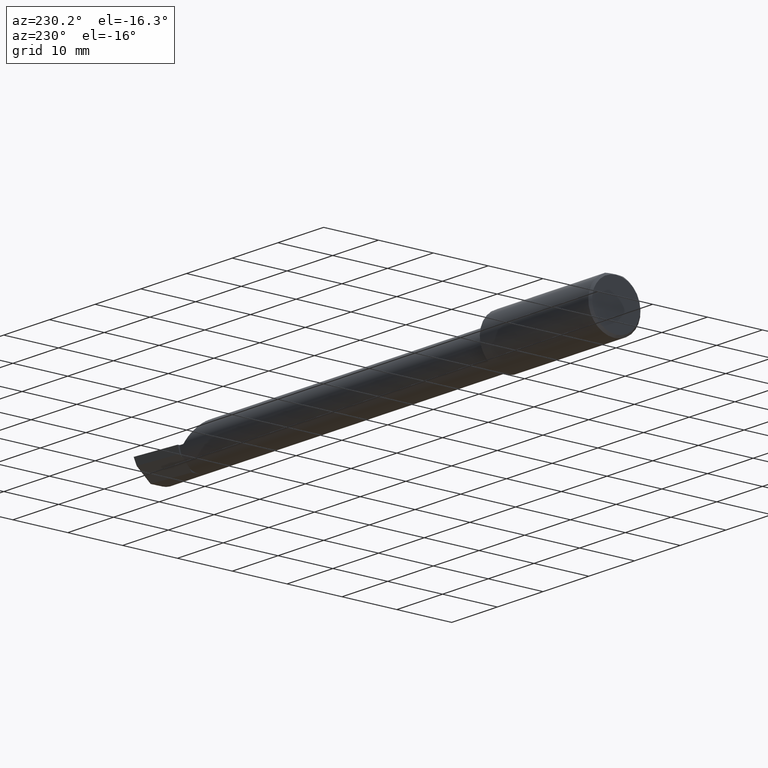
[diagram: clean part render]
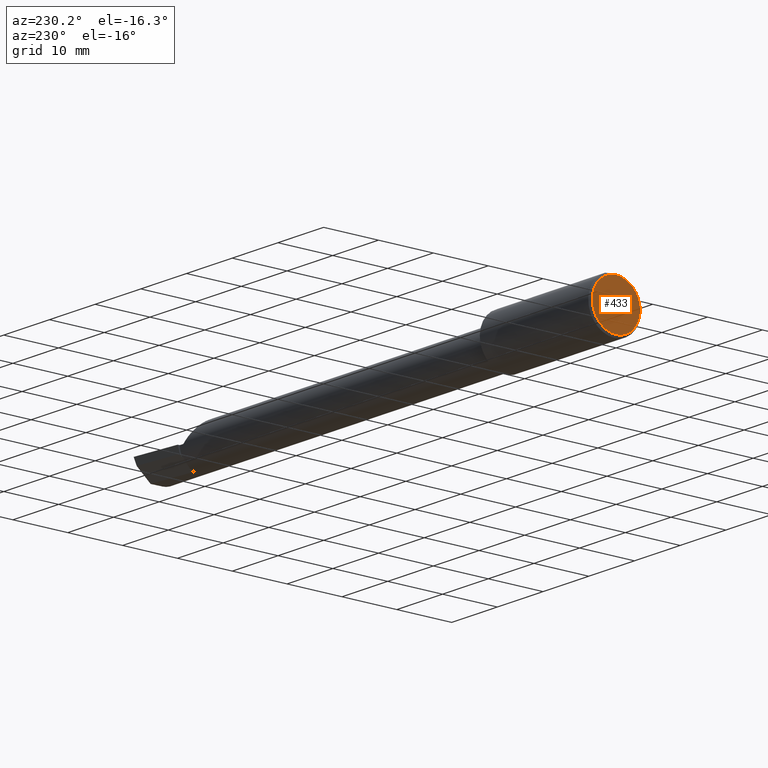
[diagram: same view with one face highlighted and labeled with its STEP entity id]
A machine part, auxiliary view. The second image highlights one B-rep face of the part: STEP entity #433.
In plain terms, the highlighted planar face has unit normal (1, 0, 0).
Its self-contained STEP definition (entity closure, byte-faithful):
#39 = PLANE ( 'NONE',  #605 ) ;
#46 = VERTEX_POINT ( 'NONE', #243 ) ;
#48 = AXIS2_PLACEMENT_3D ( 'NONE', #608, #259, #208 ) ;
#87 = FACE_OUTER_BOUND ( 'NONE', #504, .T. ) ;
#106 = AXIS2_PLACEMENT_3D ( 'NONE', #606, #156, #252 ) ;
#142 = DIRECTION ( 'NONE',  ( 0.000000000000000000, 0.000000000000000000, -1.000000000000000000 ) ) ;
#156 = DIRECTION ( 'NONE',  ( -1.000000000000000000, -0.000000000000000000, -0.000000000000000000 ) ) ;
#175 = ORIENTED_EDGE ( 'NONE', *, *, #514, .T. ) ;
#196 = DIRECTION ( 'NONE',  ( 1.000000000000000000, 0.000000000000000000, 0.000000000000000000 ) ) ;
#208 = DIRECTION ( 'NONE',  ( 0.000000000000000000, 0.000000000000000000, 1.000000000000000000 ) ) ;
#240 = CARTESIAN_POINT ( 'NONE',  ( 0.000000000000000000, 0.000000000000000000, 0.000000000000000000 ) ) ;
#243 = CARTESIAN_POINT ( 'NONE',  ( 0.000000000000000000, 0.000000000000000000, -0.1723499999999996424 ) ) ;
#252 = DIRECTION ( 'NONE',  ( 0.000000000000000000, 0.000000000000000000, 1.000000000000000000 ) ) ;
#259 = DIRECTION ( 'NONE',  ( -1.000000000000000000, -0.000000000000000000, -0.000000000000000000 ) ) ;
#284 = CARTESIAN_POINT ( 'NONE',  ( 0.000000000000000000, 2.202527268266512578E-17, 0.1723499999999996424 ) ) ;
#292 = CIRCLE ( 'NONE', #48, 0.1723499999999996424 ) ;
#303 = CIRCLE ( 'NONE', #106, 0.1723499999999996424 ) ;
#353 = VERTEX_POINT ( 'NONE', #284 ) ;
#433 = ADVANCED_FACE ( 'NONE', ( #87 ), #39, .F. ) ;
#504 = EDGE_LOOP ( 'NONE', ( #175, #644 ) ) ;
#514 = EDGE_CURVE ( 'NONE', #46, #353, #303, .T. ) ;
#563 = EDGE_CURVE ( 'NONE', #353, #46, #292, .T. ) ;
#605 = AXIS2_PLACEMENT_3D ( 'NONE', #240, #196, #142 ) ;
#606 = CARTESIAN_POINT ( 'NONE',  ( 0.000000000000000000, 0.000000000000000000, 0.000000000000000000 ) ) ;
#608 = CARTESIAN_POINT ( 'NONE',  ( 0.000000000000000000, 0.000000000000000000, 0.000000000000000000 ) ) ;
#644 = ORIENTED_EDGE ( 'NONE', *, *, #563, .T. ) ;